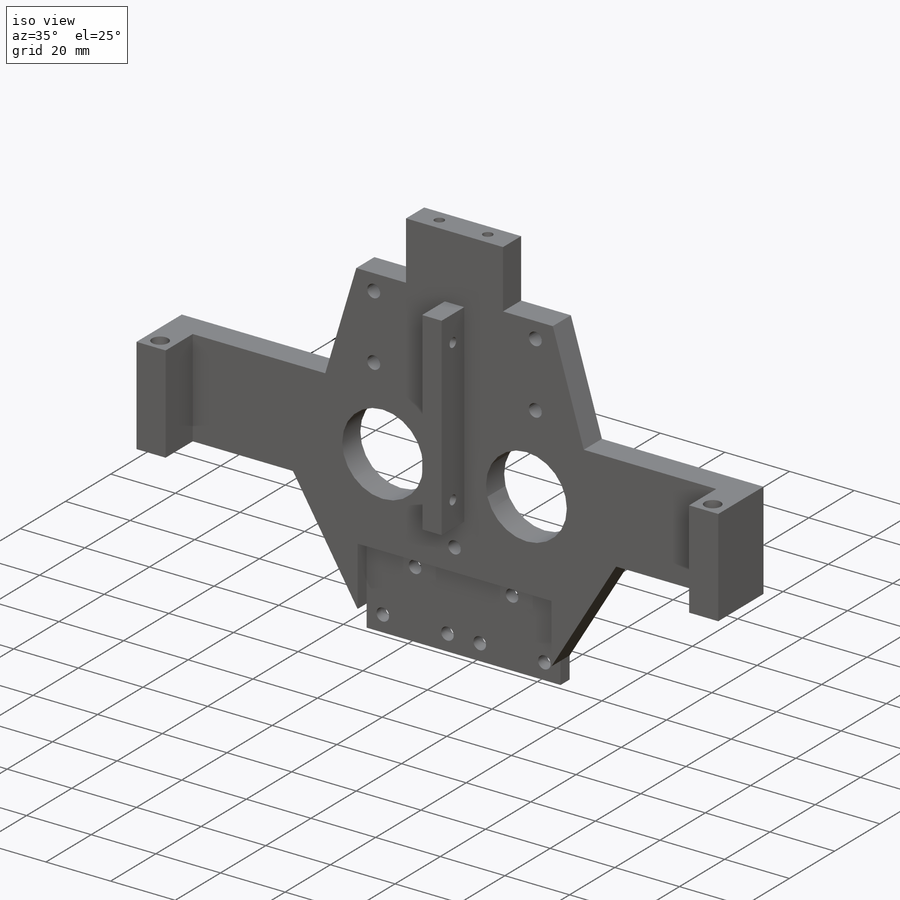
[diagram: iso view]
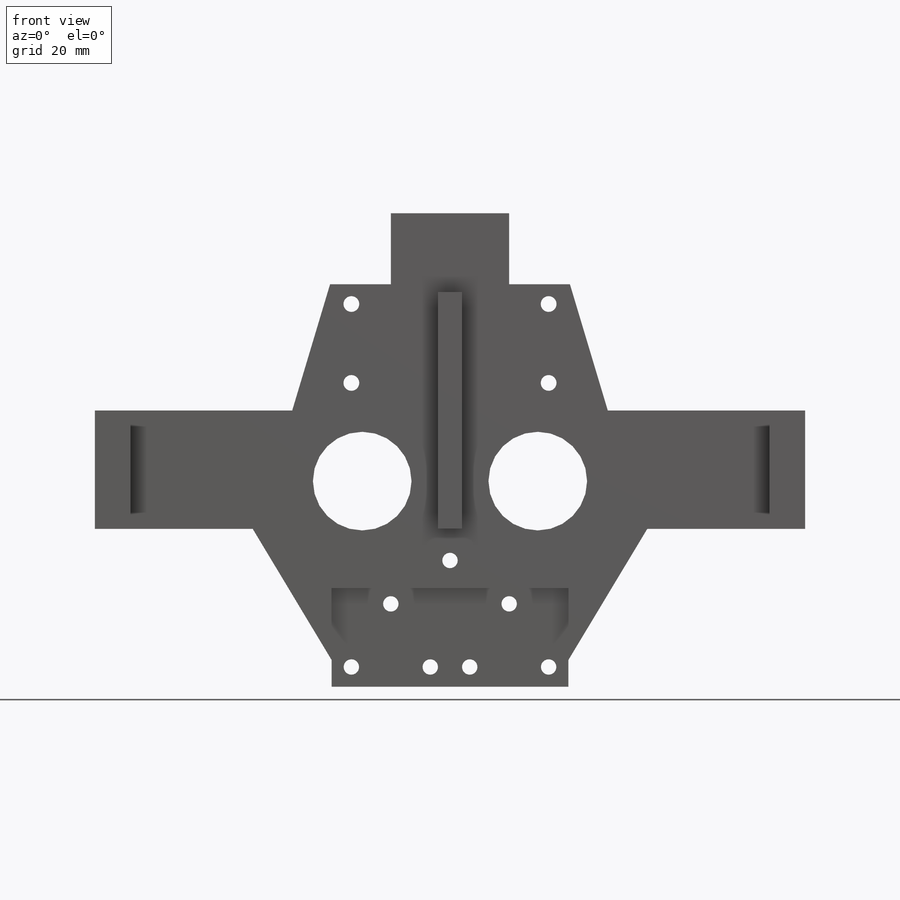
[diagram: front view]
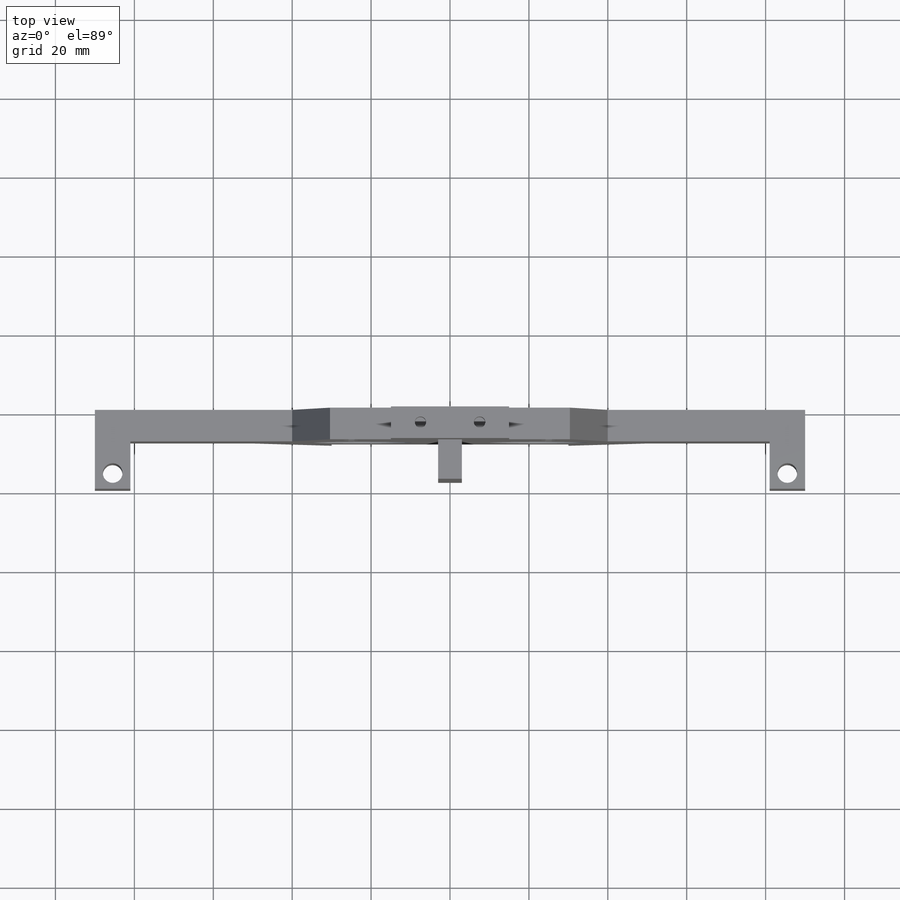
[diagram: top view]
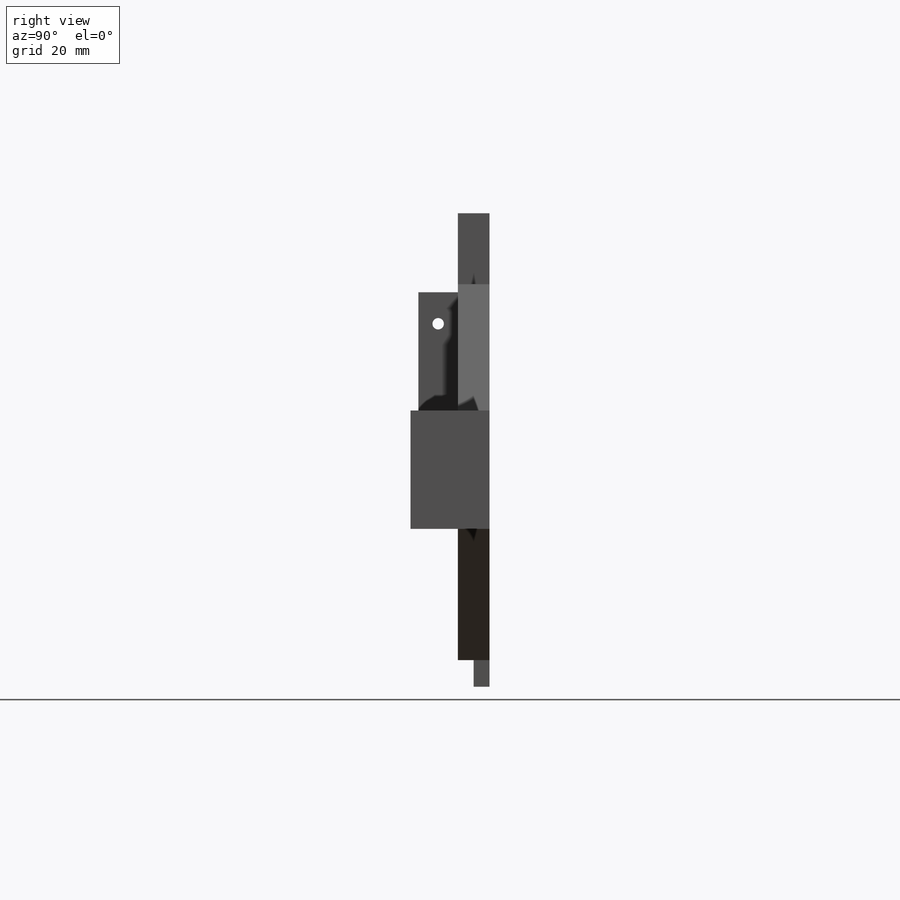
[diagram: right view]
SOLIDWORKS PART (.sldprt)
format: sldprt  version: not decoded by parser v0  size: 465,408 bytes
history: native  units: mm
features: sketch x19, hole x6, extrude x4, cut_extrude x3, mirror x2, material x1 (+14 scaffold rows collapsed)
feature tree (49):
  scaffold x14  (default folders/planes/origin — collapsed)
  material  "PLA Black"
  sketch  "Sketch1"  dims[D1=30.0mm D2=50.0mm D3=80.0mm D4=180.0mm D5=50.0mm]
  extrude  "Extrude1"  Depth=8mm
  sketch  "Sketch2"  dims[D1=100.0mm D2=40.0mm D3=60.0mm]
  extrude  "Extrude2"  [1 undecoded]
  sketch  "Sketch4"  dims[c1.D1=~10.366958mm c2.D1=270.0deg c3.D1=6.0mm c3.D2=60.0mm c3.D3=20.0mm]
  extrude  "Extrude3"  Depth=10mm
  hole  "Ø4.0 (4) Diameter Hole2"  Diameter=4mm Depth=15mm
  sketch  "3DSketch2"  dims[c1.D1=25.0mm c1.D2=25.0mm c1.D3=~9.540027mm c1.D5=12.0mm c1.D4=83.0mm c2.D3=83.0mm c3.D3=83.0mm c3.D5=52.0mm c3.D4=20.0mm c4.D3=48.6621mm c4.D5=20.0mm c5.D3=23.0mm]
  sketch  "Sketch5"  dims[hole-wizard template sketch: 50 standard entries collapsed; hole parameters above]
  sketch  "Sketch6"  dims[D1=9.0mm]
  extrude  "Extrude4"  Depth=12mm
  hole  "Ø5.0 (5) Diameter Hole1"  Diameter=5mm Depth=70mm
  sketch  "3DSketch3"  dims[D1=4.0mm]
  sketch  "Sketch8"  dims[hole-wizard template sketch: 60 standard entries collapsed; hole parameters kept: c18.Thru Hole Depth=70.0mm]
  mirror  "Mirror1"
  hole  "Ø2.9 (2.9) Diameter Hole1"  Diameter=2.9mm Depth=10mm
  sketch  "3DSketch4"  dims[D1=15.0mm]
  sketch  "Sketch9"  dims[hole-wizard template sketch: 50 standard entries collapsed; hole parameters above]
  sketch  "Sketch10"  dims[D1=25.0mm]
  cut_extrude  "Extrude5"  Depth=10mm
  mirror  "Mirror2"
  hole  "Ø2.9 (2.9) Diameter Hole2"  Diameter=2.9mm Depth=10mm
  sketch  "3DSketch5"  dims[D1=44.0mm D2=8.0mm]
  sketch  "Sketch11"  dims[hole-wizard template sketch: 50 standard entries collapsed; hole parameters above]
  sketch  "Sketch14"  dims[D1=30.0mm D2=18.0mm]
  cut_extrude  "Extrude8"  [1 undecoded]
  sketch  "Sketch15"  dims[D1=25.0mm]
  cut_extrude  "Extrude9"  Depth=4mm
  hole  "Ø4.0 (4) Diameter Hole4"  Diameter=3.9mm Depth=15mm
  sketch  "3DSketch7"  dims[c1.D1=15.0mm c1.D2=15.0mm c1.D3=15.0mm c2.D2=20.0mm c2.D3=16.0mm c2.D4=5.0mm c2.D5=20.0mm c2.D6=5.0mm c2.D7=4.0mm]
  sketch  "Sketch16"  dims[hole-wizard template sketch: 47 standard entries collapsed; hole parameters kept: c15.Hole Depth=15.0mm c15.D3=~14.816244mm c15.Drill Angle=180.0deg]
  hole  "Ø4.0 (4) Diameter Hole5"  Diameter=3.9mm Depth=15mm
  sketch  "3DSketch8"  dims[D1=7.0mm]
  sketch  "Sketch17"  dims[hole-wizard template sketch: 47 standard entries collapsed; hole parameters kept: c15.Hole Depth=15.0mm c15.D3=~14.816244mm c15.Drill Angle=180.0deg]
decode coverage: 30 of 34 modeling features carry decoded parameters
note: ~ marks probable driven/reference dimensions
note: 2 parameter values undecoded
summary: Diameter pulled from absorbed wizard sketch
note: suppression state not decoded; provenance and decode notes live in map.json
